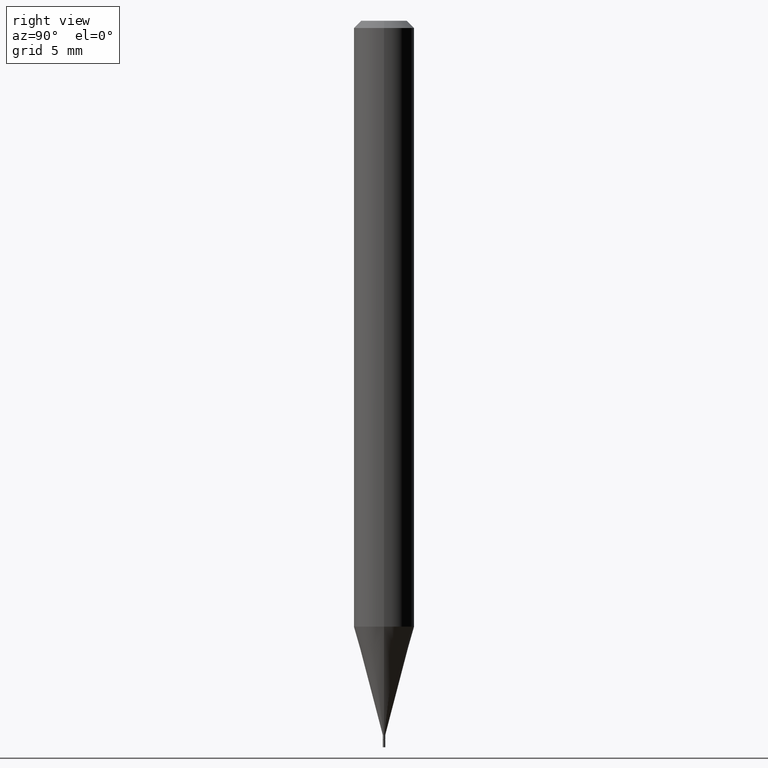
[diagram: clean part render]
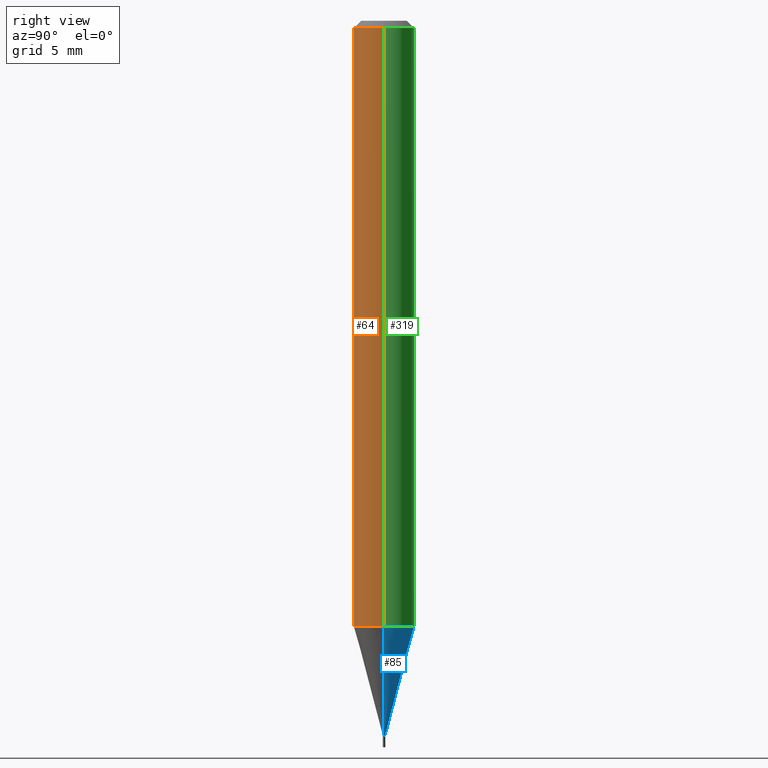
[diagram: same view with three faces highlighted in distinct colors, each labeled with its STEP entity id]
A machine part, right view with three faces highlighted in distinct colors.
Their STEP definitions:

[orange] entity #64 — the highlighted cylindrical surface (edge-blend (fillet) strip) has radius 1.5875 mm, axis along (-0, 0, 1).
#7 = EDGE_CURVE ( 'NONE', #152, #393, #287, .T. ) ;
#15 = FACE_OUTER_BOUND ( 'NONE', #461, .T. ) ;
#29 = ORIENTED_EDGE ( 'NONE', *, *, #351, .T. ) ;
#37 = ORIENTED_EDGE ( 'NONE', *, *, #454, .T. ) ;
#48 = CARTESIAN_POINT ( 'NONE',  ( -0.06250000000000000000, 4.440892098500626162E-16, -3.074334431409316114E-30 ) ) ;
#64 = ADVANCED_FACE ( 'NONE', ( #15 ), #263, .T. ) ;
#68 = DIRECTION ( 'NONE',  ( 1.000000000000000000, -6.982962677686266711E-15, 0.000000000000000000 ) ) ;
#91 = DIRECTION ( 'NONE',  ( -2.445468806185136597E-29, 3.491481338843145583E-15, 1.000000000000000000 ) ) ;
#102 = VECTOR ( 'NONE', #419, 39.37007874015748143 ) ;
#121 = DIRECTION ( 'NONE',  ( -2.445468806185136877E-29, 3.491481338843145188E-15, 1.000000000000000000 ) ) ;
#130 = CARTESIAN_POINT ( 'NONE',  ( -0.06250000000000000000, -1.766152815080844635E-15, -0.01499999999999999944 ) ) ;
#141 = AXIS2_PLACEMENT_3D ( 'NONE', #410, #91, #151 ) ;
#151 = DIRECTION ( 'NONE',  ( 1.000000000000000000, -6.982962677686266711E-15, 4.876176775795935793E-29 ) ) ;
#152 = VERTEX_POINT ( 'NONE', #368 ) ;
#163 = CARTESIAN_POINT ( 'NONE',  ( 0.06250000000000000000, -4.888073874380388472E-16, -0.01499999999999999944 ) ) ;
#178 = AXIS2_PLACEMENT_3D ( 'NONE', #427, #329, #380 ) ;
#202 = LINE ( 'NONE', #452, #102 ) ;
#231 = CARTESIAN_POINT ( 'NONE',  ( 0.06250000000000000000, -4.804546997134559093E-15, -1.251076951545867733 ) ) ;
#256 = CARTESIAN_POINT ( 'NONE',  ( 3.668203209277705088E-31, -5.237222008264718399E-17, -0.01499999999999999944 ) ) ;
#263 = CYLINDRICAL_SURFACE ( 'NONE', #141, 0.06250000000000000000 ) ;
#283 = VERTEX_POINT ( 'NONE', #231 ) ;
#287 = LINE ( 'NONE', #48, #352 ) ;
#300 = EDGE_CURVE ( 'NONE', #393, #391, #317, .T. ) ;
#306 = CIRCLE ( 'NONE', #178, 0.06250000000000000000 ) ;
#317 = CIRCLE ( 'NONE', #346, 0.06250000000000000000 ) ;
#329 = DIRECTION ( 'NONE',  ( -2.445468806185136597E-29, 3.491481338843145583E-15, 1.000000000000000000 ) ) ;
#346 = AXIS2_PLACEMENT_3D ( 'NONE', #256, #402, #68 ) ;
#350 = ORIENTED_EDGE ( 'NONE', *, *, #300, .F. ) ;
#351 = EDGE_CURVE ( 'NONE', #283, #391, #202, .T. ) ;
#352 = VECTOR ( 'NONE', #121, 39.37007874015748143 ) ;
#368 = CARTESIAN_POINT ( 'NONE',  ( -0.06250000000000000000, -3.924022619929104807E-15, -1.251076951545867733 ) ) ;
#380 = DIRECTION ( 'NONE',  ( 1.000000000000000000, -6.982962677686270655E-15, 0.000000000000000000 ) ) ;
#391 = VERTEX_POINT ( 'NONE', #163 ) ;
#393 = VERTEX_POINT ( 'NONE', #130 ) ;
#402 = DIRECTION ( 'NONE',  ( -2.445468806185136597E-29, 3.491481338843145583E-15, 1.000000000000000000 ) ) ;
#410 = CARTESIAN_POINT ( 'NONE',  ( 0.000000000000000000, 0.000000000000000000, 0.000000000000000000 ) ) ;
#419 = DIRECTION ( 'NONE',  ( -2.445468806185136877E-29, 3.491481338843145188E-15, 1.000000000000000000 ) ) ;
#427 = CARTESIAN_POINT ( 'NONE',  ( 3.059469659142613042E-29, -4.368111829779167423E-15, -1.251076951545867733 ) ) ;
#452 = CARTESIAN_POINT ( 'NONE',  ( 0.06250000000000000000, -4.364351673553916694E-16, 3.047610484872459871E-30 ) ) ;
#453 = ORIENTED_EDGE ( 'NONE', *, *, #7, .F. ) ;
#454 = EDGE_CURVE ( 'NONE', #152, #283, #306, .T. ) ;
#461 = EDGE_LOOP ( 'NONE', ( #453, #37, #29, #350 ) ) ;

[blue] entity #85 — the highlighted conical surface has half-angle 15 deg.
#14 = DIRECTION ( 'NONE',  ( -2.445468806185136597E-29, 3.491481338843145583E-15, 1.000000000000000000 ) ) ;
#25 = EDGE_CURVE ( 'NONE', #400, #152, #322, .T. ) ;
#41 = DIRECTION ( 'NONE',  ( -0.2588190451025214611, 5.211531920934550253E-15, 0.9659258262890679791 ) ) ;
#55 = CARTESIAN_POINT ( 'NONE',  ( 3.607066489123076032E-29, -5.149934974793639843E-15, -1.474999999999999867 ) ) ;
#56 = EDGE_CURVE ( 'NONE', #283, #152, #146, .T. ) ;
#73 = CARTESIAN_POINT ( 'NONE',  ( -0.002499999999999921989, -4.528097013164372051E-15, -1.474999999999999867 ) ) ;
#79 = EDGE_LOOP ( 'NONE', ( #431, #211, #108, #381 ) ) ;
#85 = ADVANCED_FACE ( 'NONE', ( #126 ), #345, .T. ) ;
#94 = DIRECTION ( 'NONE',  ( 1.000000000000000000, -6.982962677686270655E-15, 0.000000000000000000 ) ) ;
#108 = ORIENTED_EDGE ( 'NONE', *, *, #56, .F. ) ;
#115 = DIRECTION ( 'NONE',  ( -2.445468806185136597E-29, 3.491481338843145583E-15, 1.000000000000000000 ) ) ;
#126 = FACE_OUTER_BOUND ( 'NONE', #79, .T. ) ;
#146 = CIRCLE ( 'NONE', #364, 0.06250000000000000000 ) ;
#152 = VERTEX_POINT ( 'NONE', #368 ) ;
#154 = DIRECTION ( 'NONE',  ( 1.000000000000000000, -6.982962677686356641E-15, 0.000000000000000000 ) ) ;
#211 = ORIENTED_EDGE ( 'NONE', *, *, #25, .T. ) ;
#220 = CARTESIAN_POINT ( 'NONE',  ( 0.002499999999999921989, -5.167392381487854879E-15, -1.474999999999999867 ) ) ;
#222 = CIRCLE ( 'NONE', #404, 0.002499999999999921989 ) ;
#225 = DIRECTION ( 'NONE',  ( -2.445468806185136597E-29, 3.491481338843145583E-15, 1.000000000000000000 ) ) ;
#231 = CARTESIAN_POINT ( 'NONE',  ( 0.06250000000000000000, -4.804546997134559093E-15, -1.251076951545867733 ) ) ;
#233 = CARTESIAN_POINT ( 'NONE',  ( 0.002499999999999921989, -5.167392381487854879E-15, -1.474999999999999867 ) ) ;
#239 = EDGE_CURVE ( 'NONE', #313, #283, #266, .T. ) ;
#241 = EDGE_CURVE ( 'NONE', #313, #400, #222, .T. ) ;
#264 = DIRECTION ( 'NONE',  ( 0.2588190451025214611, 1.565188264969620982E-15, 0.9659258262890679791 ) ) ;
#266 = LINE ( 'NONE', #220, #310 ) ;
#283 = VERTEX_POINT ( 'NONE', #231 ) ;
#310 = VECTOR ( 'NONE', #264, 39.37007874015748143 ) ;
#313 = VERTEX_POINT ( 'NONE', #233 ) ;
#322 = LINE ( 'NONE', #332, #394 ) ;
#327 = CARTESIAN_POINT ( 'NONE',  ( 3.059469659142613042E-29, -4.368111829779167423E-15, -1.251076951545867733 ) ) ;
#332 = CARTESIAN_POINT ( 'NONE',  ( -0.002499999999999921989, -5.132171406399637717E-15, -1.474999999999999867 ) ) ;
#345 = CONICAL_SURFACE ( 'NONE', #455, 0.002499999999999921989, 0.2617993877991501850 ) ;
#364 = AXIS2_PLACEMENT_3D ( 'NONE', #327, #225, #94 ) ;
#368 = CARTESIAN_POINT ( 'NONE',  ( -0.06250000000000000000, -3.924022619929104807E-15, -1.251076951545867733 ) ) ;
#381 = ORIENTED_EDGE ( 'NONE', *, *, #239, .F. ) ;
#394 = VECTOR ( 'NONE', #41, 39.37007874015748143 ) ;
#400 = VERTEX_POINT ( 'NONE', #73 ) ;
#404 = AXIS2_PLACEMENT_3D ( 'NONE', #55, #14, #154 ) ;
#431 = ORIENTED_EDGE ( 'NONE', *, *, #241, .T. ) ;
#439 = DIRECTION ( 'NONE',  ( 1.000000000000000000, -6.982962677686356641E-15, 0.000000000000000000 ) ) ;
#441 = CARTESIAN_POINT ( 'NONE',  ( 3.607066489123076032E-29, -5.149934974793639843E-15, -1.474999999999999867 ) ) ;
#455 = AXIS2_PLACEMENT_3D ( 'NONE', #441, #115, #439 ) ;

[green] entity #319 — the highlighted cylindrical surface (edge-blend (fillet) strip) has radius 1.5875 mm, axis along (-0, 0, 1).
#7 = EDGE_CURVE ( 'NONE', #152, #393, #287, .T. ) ;
#16 = EDGE_LOOP ( 'NONE', ( #432, #143, #347, #66 ) ) ;
#22 = AXIS2_PLACEMENT_3D ( 'NONE', #275, #63, #127 ) ;
#48 = CARTESIAN_POINT ( 'NONE',  ( -0.06250000000000000000, 4.440892098500626162E-16, -3.074334431409316114E-30 ) ) ;
#56 = EDGE_CURVE ( 'NONE', #283, #152, #146, .T. ) ;
#59 = DIRECTION ( 'NONE',  ( -2.445468806185136597E-29, 3.491481338843145583E-15, 1.000000000000000000 ) ) ;
#63 = DIRECTION ( 'NONE',  ( -2.445468806185136597E-29, 3.491481338843145583E-15, 1.000000000000000000 ) ) ;
#66 = ORIENTED_EDGE ( 'NONE', *, *, #351, .F. ) ;
#94 = DIRECTION ( 'NONE',  ( 1.000000000000000000, -6.982962677686270655E-15, 0.000000000000000000 ) ) ;
#96 = CARTESIAN_POINT ( 'NONE',  ( 3.668203209277705088E-31, -5.237222008264718399E-17, -0.01499999999999999944 ) ) ;
#102 = VECTOR ( 'NONE', #419, 39.37007874015748143 ) ;
#121 = DIRECTION ( 'NONE',  ( -2.445468806185136877E-29, 3.491481338843145188E-15, 1.000000000000000000 ) ) ;
#127 = DIRECTION ( 'NONE',  ( 1.000000000000000000, -6.982962677686266711E-15, 4.876176775795935793E-29 ) ) ;
#130 = CARTESIAN_POINT ( 'NONE',  ( -0.06250000000000000000, -1.766152815080844635E-15, -0.01499999999999999944 ) ) ;
#143 = ORIENTED_EDGE ( 'NONE', *, *, #7, .T. ) ;
#146 = CIRCLE ( 'NONE', #364, 0.06250000000000000000 ) ;
#152 = VERTEX_POINT ( 'NONE', #368 ) ;
#163 = CARTESIAN_POINT ( 'NONE',  ( 0.06250000000000000000, -4.888073874380388472E-16, -0.01499999999999999944 ) ) ;
#202 = LINE ( 'NONE', #452, #102 ) ;
#209 = AXIS2_PLACEMENT_3D ( 'NONE', #96, #59, #451 ) ;
#225 = DIRECTION ( 'NONE',  ( -2.445468806185136597E-29, 3.491481338843145583E-15, 1.000000000000000000 ) ) ;
#231 = CARTESIAN_POINT ( 'NONE',  ( 0.06250000000000000000, -4.804546997134559093E-15, -1.251076951545867733 ) ) ;
#275 = CARTESIAN_POINT ( 'NONE',  ( 0.000000000000000000, 0.000000000000000000, 0.000000000000000000 ) ) ;
#283 = VERTEX_POINT ( 'NONE', #231 ) ;
#287 = LINE ( 'NONE', #48, #352 ) ;
#319 = ADVANCED_FACE ( 'NONE', ( #341 ), #382, .T. ) ;
#327 = CARTESIAN_POINT ( 'NONE',  ( 3.059469659142613042E-29, -4.368111829779167423E-15, -1.251076951545867733 ) ) ;
#341 = FACE_OUTER_BOUND ( 'NONE', #16, .T. ) ;
#347 = ORIENTED_EDGE ( 'NONE', *, *, #390, .F. ) ;
#351 = EDGE_CURVE ( 'NONE', #283, #391, #202, .T. ) ;
#352 = VECTOR ( 'NONE', #121, 39.37007874015748143 ) ;
#364 = AXIS2_PLACEMENT_3D ( 'NONE', #327, #225, #94 ) ;
#368 = CARTESIAN_POINT ( 'NONE',  ( -0.06250000000000000000, -3.924022619929104807E-15, -1.251076951545867733 ) ) ;
#382 = CYLINDRICAL_SURFACE ( 'NONE', #22, 0.06250000000000000000 ) ;
#388 = CIRCLE ( 'NONE', #209, 0.06250000000000000000 ) ;
#390 = EDGE_CURVE ( 'NONE', #391, #393, #388, .T. ) ;
#391 = VERTEX_POINT ( 'NONE', #163 ) ;
#393 = VERTEX_POINT ( 'NONE', #130 ) ;
#419 = DIRECTION ( 'NONE',  ( -2.445468806185136877E-29, 3.491481338843145188E-15, 1.000000000000000000 ) ) ;
#432 = ORIENTED_EDGE ( 'NONE', *, *, #56, .T. ) ;
#451 = DIRECTION ( 'NONE',  ( 1.000000000000000000, -6.982962677686266711E-15, 0.000000000000000000 ) ) ;
#452 = CARTESIAN_POINT ( 'NONE',  ( 0.06250000000000000000, -4.364351673553916694E-16, 3.047610484872459871E-30 ) ) ;